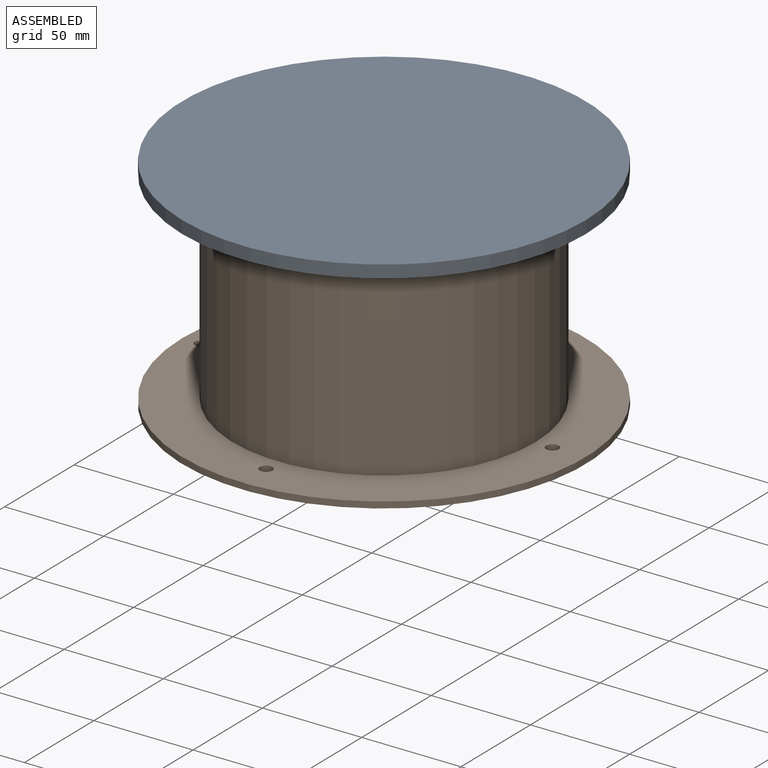
[diagram: assembled view]
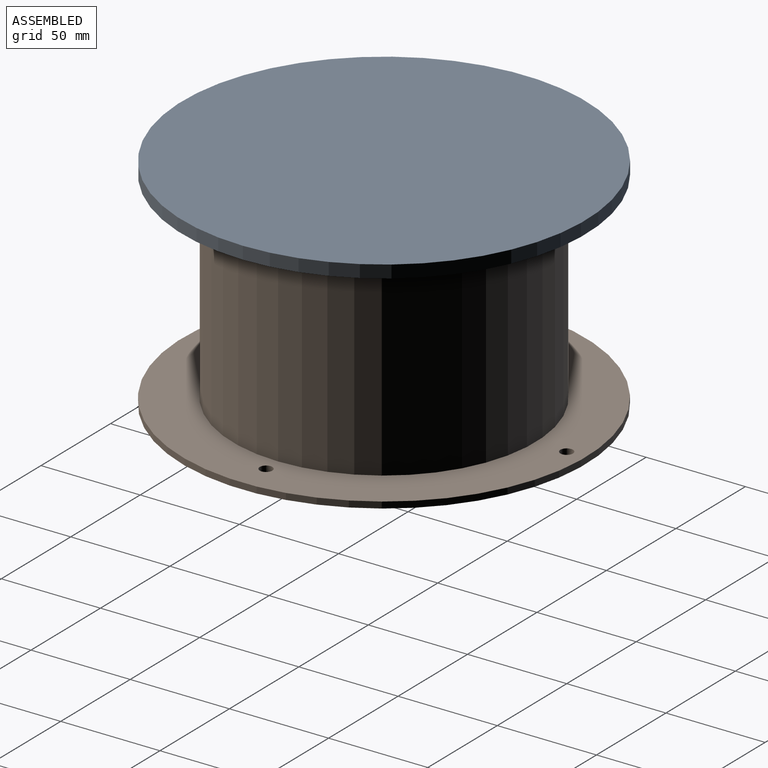
[diagram: assembled view, second angle]
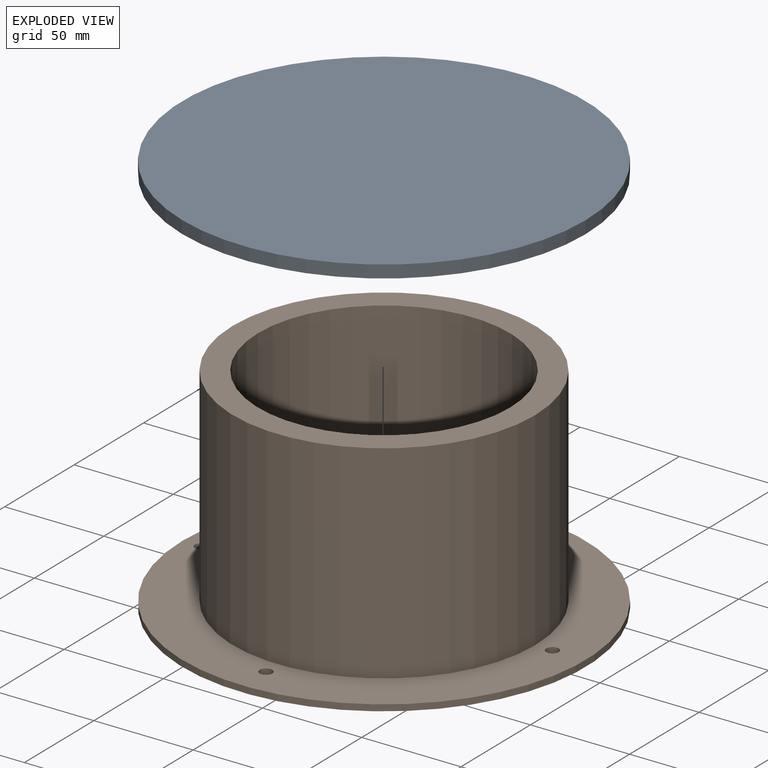
[diagram: exploded view]
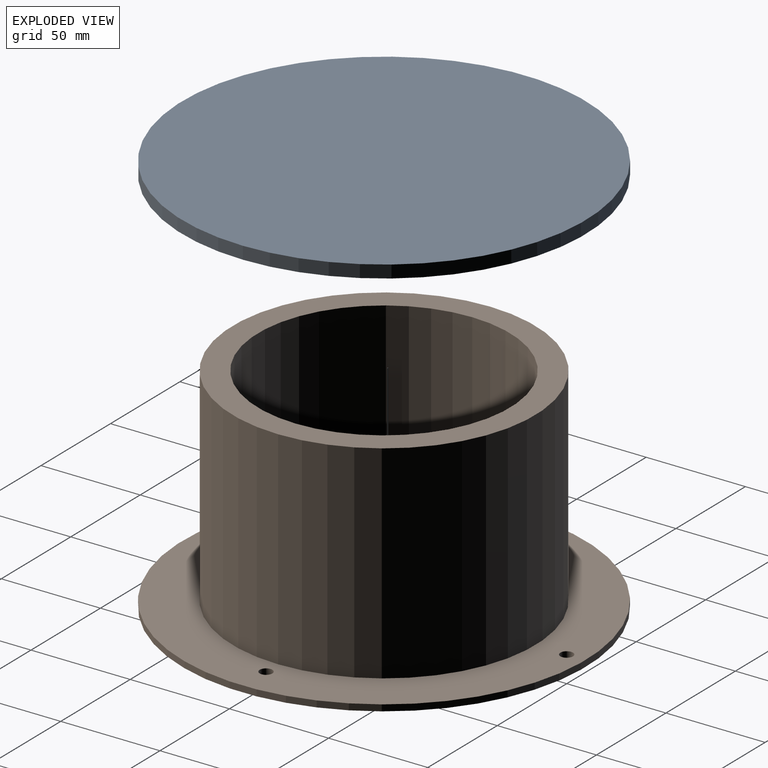
[diagram: exploded view, second angle]
ASSEMBLY  parts=2 mates=2
PART A: 7 faces, bbox 203.2x203.2x6.4 mm
  f0: cylinder r=101.6mm len=203.2mm, axis (0,0,-1), area 4053.7mm2, adj f1,f2
  f1: plane 203.2x203.2mm, normal (0,0,1), area 32429.3mm2, adj f0
  f2: plane 203.2x203.2mm, normal (0,0,-1), area 13574.7mm2, adj f0,f4
  f3: cylinder r=62.23mm len=124.46mm, axis (0,0,-1), area 1241.4mm2, adj f5,f6
  f4: cylinder r=77.47mm len=154.94mm, axis (0,0,-1), area 1545.5mm2, adj f2,f5
  f5: plane 154.94x154.94mm, normal (0,0,-1), area 6688.5mm2, adj f3,f4
  f6: plane 124.46x124.46mm, normal (0,0,-1), area 12166mm2, adj f3
PART B: 10 faces, bbox 203.2x203.2x108 mm
  f0: cylinder r=76.2mm len=152.4mm, axis (0,0,-1), area 50164mm2, adj f2,f5
  f1: cylinder r=63.5mm len=127mm, axis (0,0,-1), area 43070.1mm2, adj f2,f3
  f2: plane 152.4x152.4mm, normal (0,0,1), area 5573.8mm2, adj f0,f1
  f3: plane 203.2x203.2mm, normal (0,0,-1), area 19634.9mm2, adj f1,f4,f6,f7,f8,f9
  f4: cylinder r=101.6mm len=203.2mm, axis (0,0,-1), area 2026.8mm2, adj f3,f5
  f5: plane 203.2x203.2mm, normal (0,0,1), area 14061.1mm2, adj f0,f4,f6,f7,f8,f9
  f6: cylinder r=3.17mm len=6.35mm, axis (0,0,1), area 63.3mm2, adj f3,f5
  f7: cylinder r=3.17mm len=6.35mm, axis (0,0,1), area 63.3mm2, adj f3,f5
  f8: cylinder r=3.17mm len=6.35mm, axis (0,0,1), area 63.3mm2, adj f3,f5
  f9: cylinder r=3.17mm len=6.35mm, axis (0,0,1), area 63.3mm2, adj f3,f5
PLACE A t=(-59.62,1.19,-161.85)mm
PLACE B t=(-59.62,1.19,-266.62)mm
MATE cylindrical A.f0 <-> B.f4  axis (0,0,1) through (-59.62,1.19,-155.5)mm
MATE planar A.f4 <-> B.f0  axis (0,0,-1) through (-59.62,1.19,-158.67)mm
